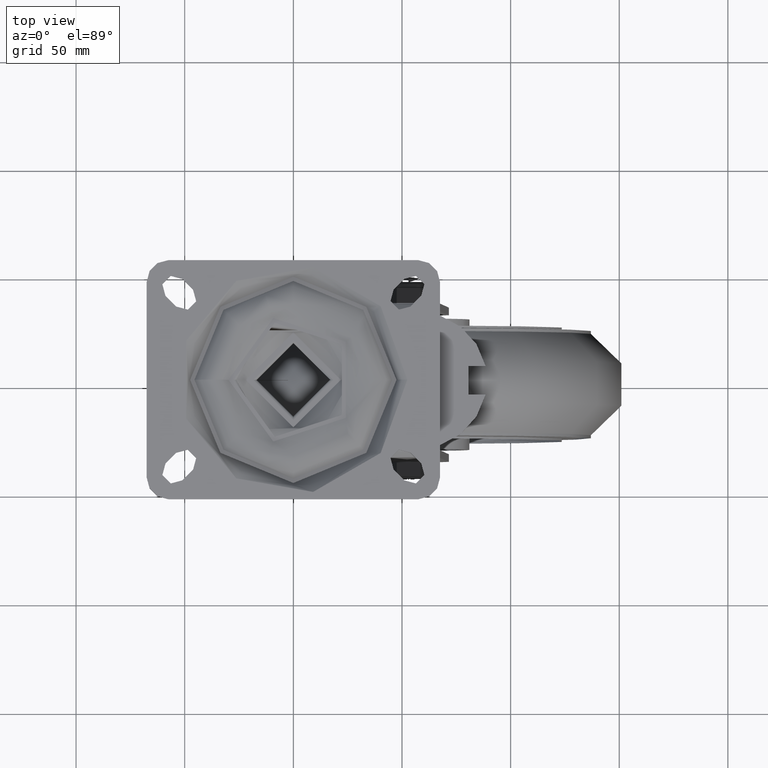
[diagram: clean part render]
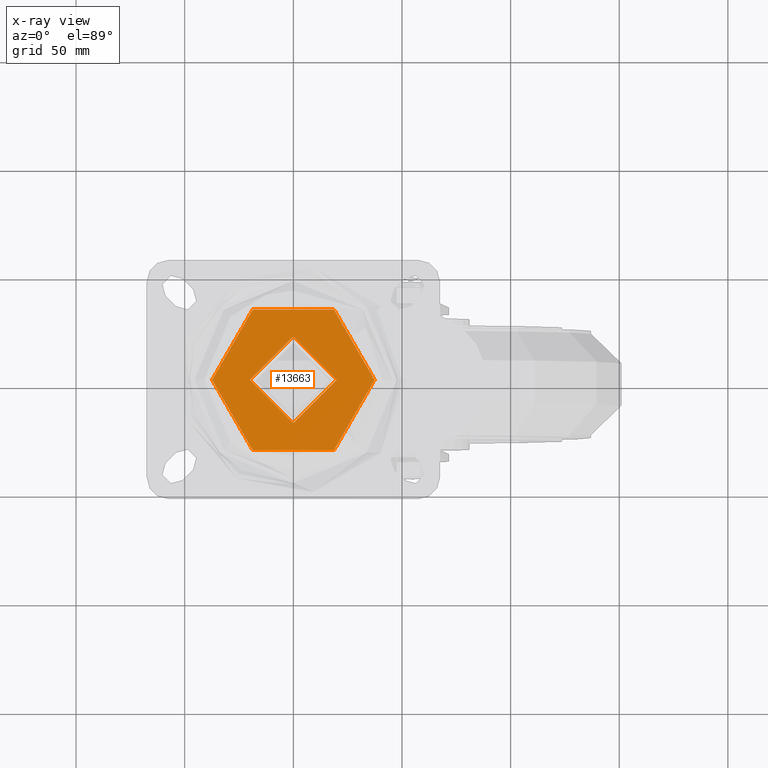
[diagram: x-ray — body ghosted, one internal face saturated and labeled with its STEP entity id]
A machine part, top view, then the same camera in x-ray: the body is ghosted and one INTERNAL B-rep face — a face not visible from any outside direction — is saturated and labeled: STEP entity #13663.
In plain terms, the highlighted planar face has unit normal (0, 0, 1).
Its self-contained STEP definition (entity closure, byte-faithful):
#743=FACE_BOUND('',#2835,.T.);
#930=PLANE('',#14780);
#2002=FACE_OUTER_BOUND('',#2834,.T.);
#2834=EDGE_LOOP('',(#9676));
#2835=EDGE_LOOP('',(#9677));
#5417=CIRCLE('',#14661,37.4019237886467);
#5423=CIRCLE('',#14669,19.875);
#5975=VERTEX_POINT('',#19317);
#5979=VERTEX_POINT('',#19329);
#7334=EDGE_CURVE('',#5975,#5975,#5417,.T.);
#7340=EDGE_CURVE('',#5979,#5979,#5423,.T.);
#9676=ORIENTED_EDGE('',*,*,#7334,.T.);
#9677=ORIENTED_EDGE('',*,*,#7340,.T.);
#13663=ADVANCED_FACE('',(#2002,#743),#930,.F.);
#14661=AXIS2_PLACEMENT_3D('',#19318,#15977,#15978);
#14669=AXIS2_PLACEMENT_3D('',#19330,#15993,#15994);
#14780=AXIS2_PLACEMENT_3D('',#22125,#16265,#16266);
#15977=DIRECTION('center_axis',(0.,0.,-1.));
#15978=DIRECTION('ref_axis',(-1.,0.,0.));
#15993=DIRECTION('center_axis',(0.,0.,1.));
#15994=DIRECTION('ref_axis',(-1.,1.23674392377418E-16,0.));
#16265=DIRECTION('center_axis',(0.,0.,1.));
#16266=DIRECTION('ref_axis',(1.,0.,0.));
#19317=CARTESIAN_POINT('',(37.4019237886467,-4.58041462497194E-15,-9.));
#19318=CARTESIAN_POINT('Origin',(0.,0.,-9.));
#19329=CARTESIAN_POINT('',(19.875,-4.89201406180655E-15,-9.));
#19330=CARTESIAN_POINT('Origin',(7.5515124418497E-16,2.46046082312145E-32,
-9.));
#22125=CARTESIAN_POINT('Origin',(0.,0.,-9.));